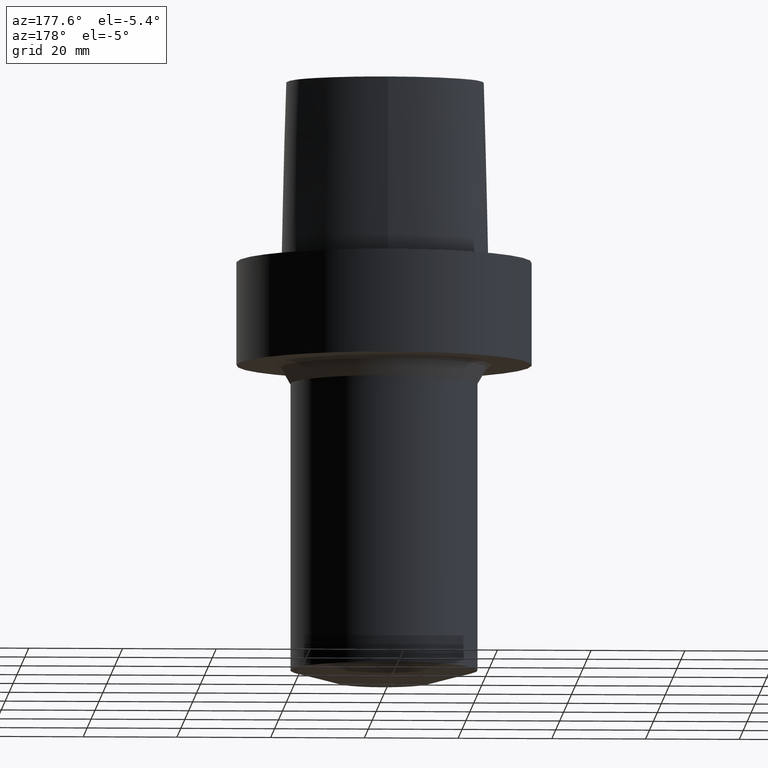
[diagram: clean part render]
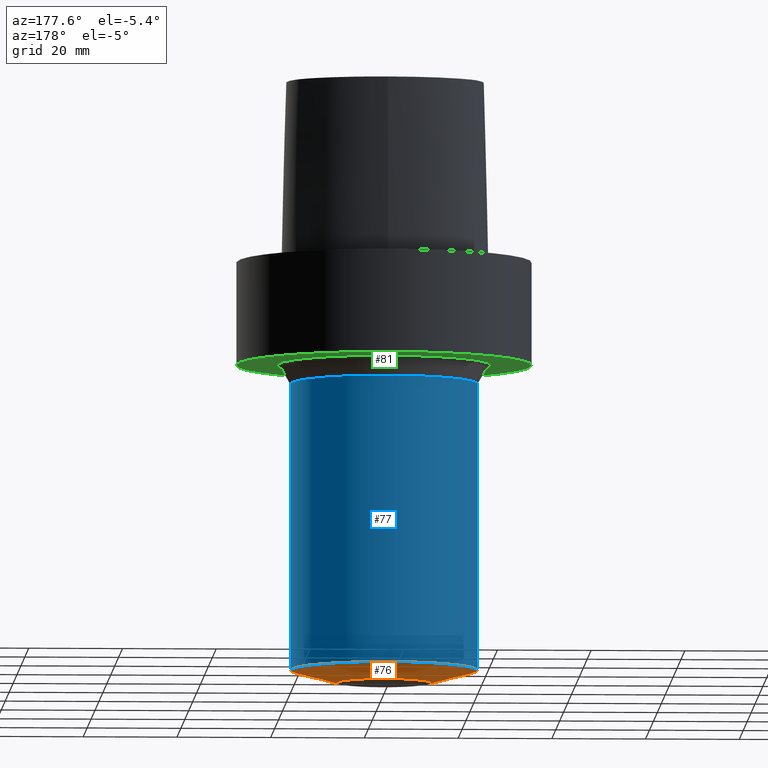
[diagram: same view with three faces highlighted in distinct colors, each labeled with its STEP entity id]
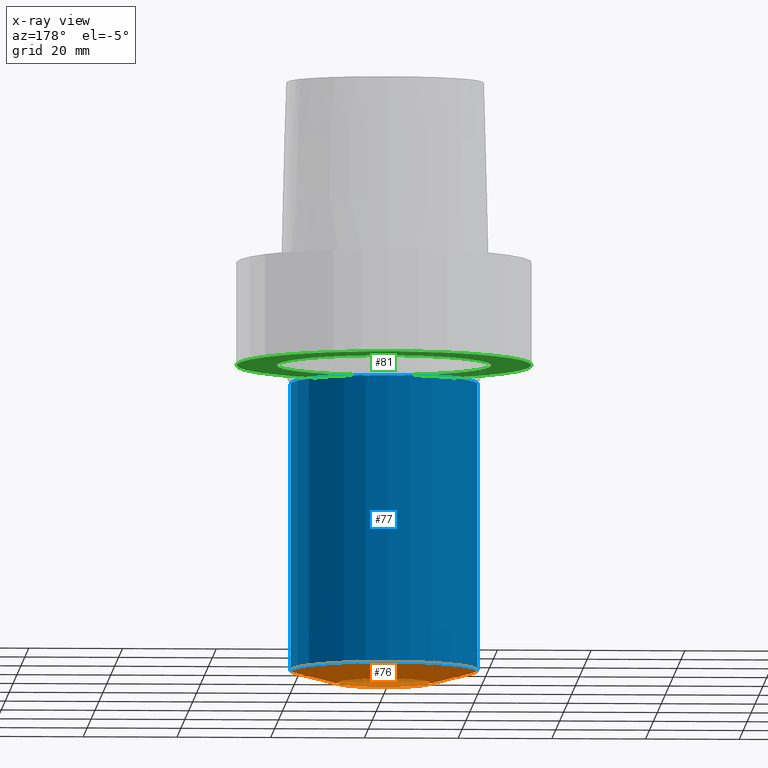
[diagram: x-ray of the same camera — body ghosted, the three highlighted faces saturated]
A machine part, auxiliary view with three faces highlighted in distinct colors.
The next image is the same camera in x-ray (body ghosted, the three faces saturated) — at least one of them is partly hidden behind the body in this view.
Their STEP definitions:

[orange] entity #76 — the highlighted conical surface has half-angle 75 deg.
#76=ADVANCED_FACE('',(#91,#92),#93,.T.);
#91=FACE_BOUND('',#122,.T.);
#92=FACE_BOUND('',#123,.T.);
#93=CONICAL_SURFACE('',#124,15.0000000010874,1.30899693717722);
#122=EDGE_LOOP('',(#295));
#123=EDGE_LOOP('',(#296));
#124=AXIS2_PLACEMENT_3D('',#297,#298,#299);
#295=ORIENTED_EDGE('',*,*,#352,.T.);
#296=ORIENTED_EDGE('',*,*,#353,.F.);
#297=CARTESIAN_POINT('',(5.428875E-015,1.085775E-014,-88.660254036406));
#298=DIRECTION('',(-0.0,-0.0,1.0));
#299=DIRECTION('',(0.0,1.0,0.0));
#352=EDGE_CURVE('',#371,#371,#372,.T.);
#353=EDGE_CURVE('',#373,#373,#374,.T.);
#371=VERTEX_POINT('',#458);
#372=CIRCLE('',#459,20.0);
#373=VERTEX_POINT('',#460);
#374=CIRCLE('',#461,10.0000000021748);
#458=CARTESIAN_POINT('',(1.020227E-015,-20.0,-87.320508072812));
#459=AXIS2_PLACEMENT_3D('',#516,#517,#518);
#460=CARTESIAN_POINT('',(4.204268E-015,-10.0000000021748,-90.0));
#461=AXIS2_PLACEMENT_3D('',#519,#520,#521);
#516=CARTESIAN_POINT('',(5.346839E-015,1.069368E-014,-87.320508072812));
#517=DIRECTION('',(0.0,0.0,-1.0));
#518=DIRECTION('',(0.0,1.0,0.0));
#519=CARTESIAN_POINT('',(5.510911E-015,1.102182E-014,-90.0));
#520=DIRECTION('',(0.0,0.0,-1.0));
#521=DIRECTION('',(0.0,1.0,0.0));

[blue] entity #77 — the highlighted cylindrical surface (bore or boss wall) has radius 20 mm, axis along (-0, -0, 1).
#77=ADVANCED_FACE('',(#94,#95),#96,.T.);
#94=FACE_BOUND('',#125,.T.);
#95=FACE_BOUND('',#126,.T.);
#96=CYLINDRICAL_SURFACE('',#127,20.0);
#125=EDGE_LOOP('',(#300));
#126=EDGE_LOOP('',(#301));
#127=AXIS2_PLACEMENT_3D('',#302,#303,#304);
#300=ORIENTED_EDGE('',*,*,#354,.T.);
#301=ORIENTED_EDGE('',*,*,#352,.F.);
#302=CARTESIAN_POINT('',(3.46944E-015,6.93888E-015,-56.6602540387473));
#303=DIRECTION('',(-0.0,-0.0,1.0));
#304=DIRECTION('',(0.0,1.0,0.0));
#352=EDGE_CURVE('',#371,#371,#372,.T.);
#354=EDGE_CURVE('',#375,#375,#376,.T.);
#371=VERTEX_POINT('',#458);
#372=CIRCLE('',#459,20.0);
#375=VERTEX_POINT('',#462);
#376=CIRCLE('',#463,20.0);
#458=CARTESIAN_POINT('',(1.020227E-015,-20.0,-87.320508072812));
#459=AXIS2_PLACEMENT_3D('',#516,#517,#518);
#462=CARTESIAN_POINT('',(-9.643285E-016,-20.0,-26.0000000046826));
#463=AXIS2_PLACEMENT_3D('',#522,#523,#524);
#516=CARTESIAN_POINT('',(5.346839E-015,1.069368E-014,-87.320508072812));
#517=DIRECTION('',(0.0,0.0,-1.0));
#518=DIRECTION('',(0.0,1.0,0.0));
#522=CARTESIAN_POINT('',(1.592041E-015,3.184082E-015,-26.0000000046826));
#523=DIRECTION('',(0.0,0.0,-1.0));
#524=DIRECTION('',(0.0,1.0,0.0));

[green] entity #81 — the highlighted planar face has unit normal (0, 0, -1).
#81=ADVANCED_FACE('',(#106,#107),#108,.T.);
#106=FACE_OUTER_BOUND('',#137,.T.);
#107=FACE_BOUND('',#138,.T.);
#108=PLANE('',#139);
#137=EDGE_LOOP('',(#320));
#138=EDGE_LOOP('',(#321));
#139=AXIS2_PLACEMENT_3D('',#322,#323,#324);
#320=ORIENTED_EDGE('',*,*,#357,.T.);
#321=ORIENTED_EDGE('',*,*,#356,.F.);
#322=CARTESIAN_POINT('',(1.347111E-015,27.189625675,-22.0));
#323=DIRECTION('',(0.0,0.0,-1.0));
#324=DIRECTION('',(0.0,-1.0,0.0));
#356=EDGE_CURVE('',#379,#379,#380,.T.);
#357=EDGE_CURVE('',#381,#381,#382,.T.);
#379=VERTEX_POINT('',#466);
#380=CIRCLE('',#467,22.88675135);
#381=VERTEX_POINT('',#468);
#382=CIRCLE('',#469,31.4925);
#466=CARTESIAN_POINT('',(-1.440307E-015,-22.88675135,-22.0));
#467=AXIS2_PLACEMENT_3D('',#528,#529,#530);
#468=CARTESIAN_POINT('',(-3.183036E-015,-31.4925,-22.0));
#469=AXIS2_PLACEMENT_3D('',#531,#532,#533);
#528=CARTESIAN_POINT('',(1.347111E-015,2.694223E-015,-22.0));
#529=DIRECTION('',(0.0,0.0,-1.0));
#530=DIRECTION('',(0.0,1.0,0.0));
#531=CARTESIAN_POINT('',(1.347111E-015,2.694223E-015,-22.0));
#532=DIRECTION('',(0.0,0.0,-1.0));
#533=DIRECTION('',(0.0,1.0,0.0));